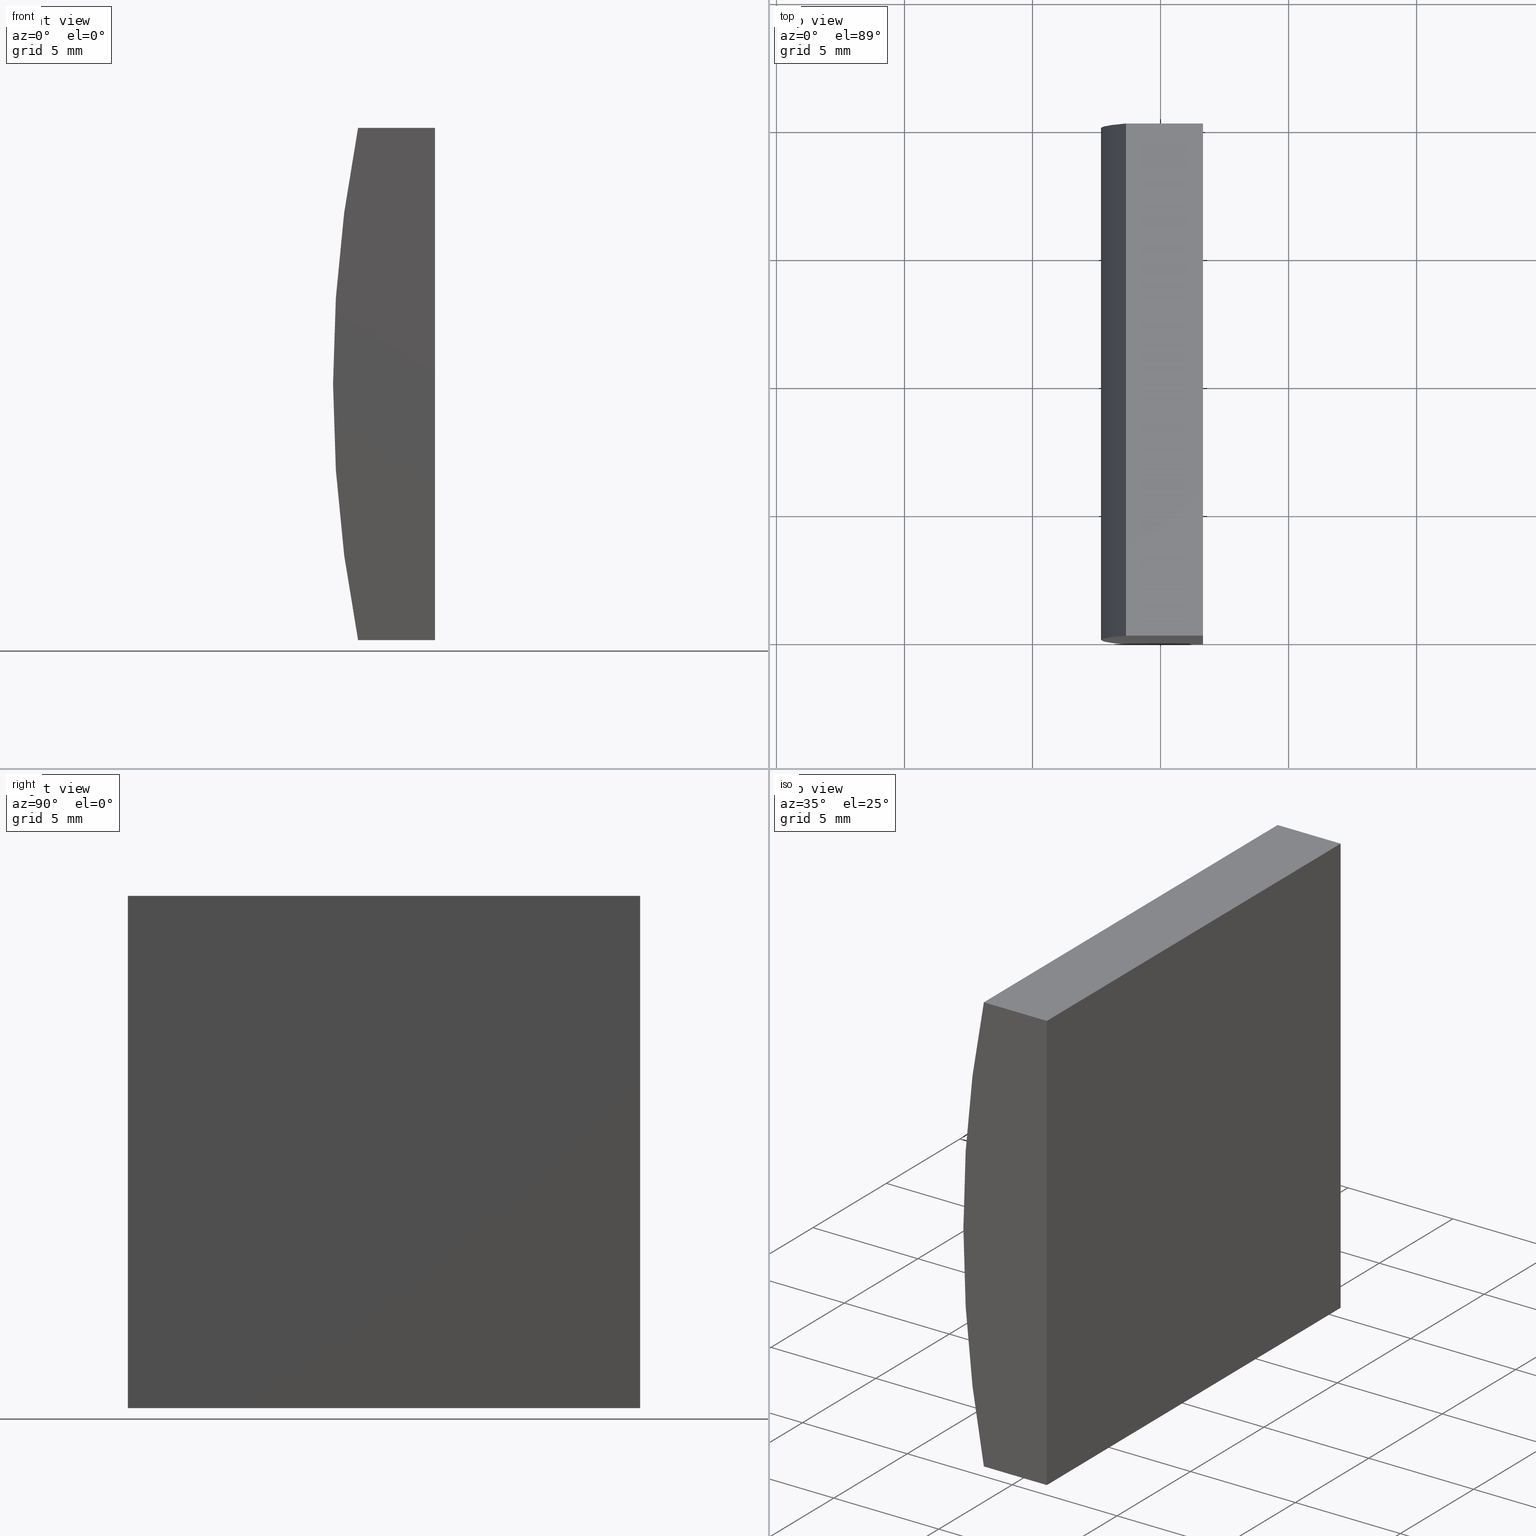
[diagram: canonical four-view strip — front | top / right | iso, engineering-drawing reading convention]
A machine part, canonical four-view strip (front | top / right | iso — engineering-drawing reading convention). The complete STEP part file that produces these views, byte-faithful:
ISO-10303-21;
HEADER;
FILE_DESCRIPTION (( 'STEP AP214' ),
    '1' );
FILE_NAME ('155031.STEP',
    '2019-06-17T06:36:16',
    ( 'user' ),
    ( '΢���й�' ),
    'SwSTEP 2.0',
    'SolidWorks 2016',
    '' );
FILE_SCHEMA (( 'AUTOMOTIVE_DESIGN' ));
ENDSEC;

DATA;
#1 = AXIS2_PLACEMENT_3D ( 'NONE', #92, #126, #51 ) ;
#2 = DIRECTION ( 'NONE',  ( 1.000000000000000000, 0.0000000000000000000, 2.310440093344863800E-015 ) ) ;
#3 = SURFACE_STYLE_FILL_AREA ( #137 ) ;
#4 = VECTOR ( 'NONE', #133, 1000.000000000000000 ) ;
#5 = DIRECTION ( 'NONE',  ( -2.310440093344863800E-015, 0.0000000000000000000, 1.000000000000000000 ) ) ;
#6 =( NAMED_UNIT ( * ) SI_UNIT ( $, .STERADIAN. ) SOLID_ANGLE_UNIT ( ) );
#7 = LINE ( 'NONE', #62, #59 ) ;
#8 = EDGE_CURVE ( 'NONE', #66, #141, #55, .T. ) ;
#9 = ORIENTED_EDGE ( 'NONE', *, *, #64, .T. ) ;
#10 = ORIENTED_EDGE ( 'NONE', *, *, #181, .T. ) ;
#11 = EDGE_CURVE ( 'NONE', #41, #36, #93, .T. ) ;
#12 = VECTOR ( 'NONE', #60, 1000.000000000000000 ) ;
#13 =( NAMED_UNIT ( * ) SI_UNIT ( $, .STERADIAN. ) SOLID_ANGLE_UNIT ( ) );
#14 = AXIS2_PLACEMENT_3D ( 'NONE', #119, #81, #87 ) ;
#15 = EDGE_LOOP ( 'NONE', ( #9, #153, #198, #112 ) ) ;
#16 = DIRECTION ( 'NONE',  ( 0.0000000000000000000, 1.000000000000000000, 0.0000000000000000000 ) ) ;
#17 = ADVANCED_FACE ( 'NONE', ( #204 ), #34, .F. ) ;
#18 = PRODUCT_DEFINITION_SHAPE ( 'NONE', 'NONE',  #101 ) ;
#19 = DIRECTION ( 'NONE',  ( -3.469446951953615200E-016, -0.0000000000000000000, -1.000000000000000000 ) ) ;
#20 = EDGE_CURVE ( 'NONE', #47, #66, #99, .T. ) ;
#21 = DIRECTION ( 'NONE',  ( 0.0000000000000000000, 1.000000000000000000, 0.0000000000000000000 ) ) ;
#22 = EDGE_LOOP ( 'NONE', ( #86, #45, #144, #116 ) ) ;
#23 = MANIFOLD_SOLID_BREP ( '͹̨-����1', #157 ) ;
#24 =( LENGTH_UNIT ( ) NAMED_UNIT ( * ) SI_UNIT ( .MILLI., .METRE. ) );
#25 = ADVANCED_FACE ( 'NONE', ( #107 ), #40, .F. ) ;
#26 = ORIENTED_EDGE ( 'NONE', *, *, #43, .F. ) ;
#27 = ORIENTED_EDGE ( 'NONE', *, *, #196, .T. ) ;
#28 = CARTESIAN_POINT ( 'NONE',  ( 4.355204334851265500, 20.00000000000000000, 4.286263797015675000E-017 ) ) ;
#29 = CARTESIAN_POINT ( 'NONE',  ( -46.34807366568830400, 20.00000000000000000, 10.00000000000000000 ) ) ;
#30 = ORIENTED_EDGE ( 'NONE', *, *, #134, .T. ) ;
#31 = CIRCLE ( 'NONE', #199, 51.68000000000000700 ) ;
#32 = CARTESIAN_POINT ( 'NONE',  ( -46.34807366568831100, 20.00000000000000000, -10.00000000000000000 ) ) ;
#33 = ORIENTED_EDGE ( 'NONE', *, *, #38, .F. ) ;
#34 = PLANE ( 'NONE',  #135 ) ;
#35 = LINE ( 'NONE', #167, #168 ) ;
#36 = VERTEX_POINT ( 'NONE', #148 ) ;
#37 = CARTESIAN_POINT ( 'NONE',  ( -46.34807366568831100, 0.0000000000000000000, -10.00000000000000000 ) ) ;
#38 = EDGE_CURVE ( 'NONE', #141, #103, #35, .T. ) ;
#39 = CARTESIAN_POINT ( 'NONE',  ( -43.34479566514873000, 20.00000000000000000, 10.00000000000000000 ) ) ;
#40 = PLANE ( 'NONE',  #1 ) ;
#41 = VERTEX_POINT ( 'NONE', #90 ) ;
#42 = SHAPE_DEFINITION_REPRESENTATION ( #18, #154 ) ;
#43 = EDGE_CURVE ( 'NONE', #47, #152, #31, .T. ) ;
#44 = FILL_AREA_STYLE ('',( #108 ) ) ;
#45 = ORIENTED_EDGE ( 'NONE', *, *, #122, .F. ) ;
#46 = PRESENTATION_LAYER_ASSIGNMENT (  '', '', ( #114 ) ) ;
#47 = VERTEX_POINT ( 'NONE', #186 ) ;
#48 = PRODUCT_DEFINITION_CONTEXT ( 'detailed design', #128, 'design' ) ;
#49 = DIRECTION ( 'NONE',  ( 0.0000000000000000000, 0.0000000000000000000, 1.000000000000000000 ) ) ;
#50 = AXIS2_PLACEMENT_3D ( 'NONE', #70, #5, #2 ) ;
#51 = DIRECTION ( 'NONE',  ( 3.469446951953615200E-016, 0.0000000000000000000, 1.000000000000000000 ) ) ;
#52 = CARTESIAN_POINT ( 'NONE',  ( -46.34807366568830400, 20.00000000000000000, 10.00000000000000000 ) ) ;
#53 = VECTOR ( 'NONE', #173, 1000.000000000000000 ) ;
#54 = PLANE ( 'NONE',  #50 ) ;
#55 = CIRCLE ( 'NONE', #178, 51.68000000000000700 ) ;
#56 = ADVANCED_FACE ( 'NONE', ( #194 ), #151, .T. ) ;
#57 = AXIS2_PLACEMENT_3D ( 'NONE', #125, #118, #65 ) ;
#58 = LINE ( 'NONE', #98, #78 ) ;
#59 = VECTOR ( 'NONE', #155, 1000.000000000000000 ) ;
#60 = DIRECTION ( 'NONE',  ( -0.0000000000000000000, -1.000000000000000000, -0.0000000000000000000 ) ) ;
#61 = PRODUCT_CONTEXT ( 'NONE', #120, 'mechanical' ) ;
#62 = CARTESIAN_POINT ( 'NONE',  ( -43.34479566514873700, 0.0000000000000000000, -9.999999999999992900 ) ) ;
#63 = ORIENTED_EDGE ( 'NONE', *, *, #181, .F. ) ;
#64 = EDGE_CURVE ( 'NONE', #103, #104, #7, .T. ) ;
#65 = DIRECTION ( 'NONE',  ( 0.0000000000000000000, -0.0000000000000000000, 1.000000000000000000 ) ) ;
#66 = VERTEX_POINT ( 'NONE', #37 ) ;
#67 = ORIENTED_EDGE ( 'NONE', *, *, #11, .T. ) ;
#68 = LINE ( 'NONE', #139, #53 ) ;
#69 = DIRECTION ( 'NONE',  ( -0.0000000000000000000, -1.000000000000000000, -0.0000000000000000000 ) ) ;
#70 = CARTESIAN_POINT ( 'NONE',  ( -46.34807366568831100, 20.00000000000000000, -10.00000000000000000 ) ) ;
#71 = ORIENTED_EDGE ( 'NONE', *, *, #159, .T. ) ;
#72 = PRODUCT_RELATED_PRODUCT_CATEGORY ( 'part', '', ( #91 ) ) ;
#73 =( NAMED_UNIT ( * ) PLANE_ANGLE_UNIT ( ) SI_UNIT ( $, .RADIAN. ) );
#74 = FACE_OUTER_BOUND ( 'NONE', #123, .T. ) ;
#75 = CARTESIAN_POINT ( 'NONE',  ( -46.34807366568831100, 20.00000000000000000, -10.00000000000000000 ) ) ;
#76 =( NAMED_UNIT ( * ) PLANE_ANGLE_UNIT ( ) SI_UNIT ( $, .RADIAN. ) );
#77 = FACE_OUTER_BOUND ( 'NONE', #127, .T. ) ;
#78 = VECTOR ( 'NONE', #94, 1000.000000000000000 ) ;
#79 = CARTESIAN_POINT ( 'NONE',  ( -43.34479566514873000, 0.0000000000000000000, 10.00000000000000000 ) ) ;
#80 = EDGE_LOOP ( 'NONE', ( #121, #131, #26, #129 ) ) ;
#81 = DIRECTION ( 'NONE',  ( -0.0000000000000000000, -1.000000000000000000, -0.0000000000000000000 ) ) ;
#82 = MECHANICAL_DESIGN_GEOMETRIC_PRESENTATION_REPRESENTATION (  '', ( #114 ), #149 ) ;
#83 = DIRECTION ( 'NONE',  ( -1.000000000000000000, 0.0000000000000000000, -0.0000000000000000000 ) ) ;
#84 =( NAMED_UNIT ( * ) SI_UNIT ( $, .STERADIAN. ) SOLID_ANGLE_UNIT ( ) );
#85 = CYLINDRICAL_SURFACE ( 'NONE', #14, 51.68000000000000700 ) ;
#86 = ORIENTED_EDGE ( 'NONE', *, *, #38, .T. ) ;
#87 = DIRECTION ( 'NONE',  ( 0.0000000000000000000, 0.0000000000000000000, -1.000000000000000000 ) ) ;
#88 = STYLED_ITEM ( 'NONE', ( #156 ), #23 ) ;
#89 = COLOUR_RGB ( '',1.000000000000000000, 1.000000000000000000, 1.000000000000000000 ) ;
#90 = CARTESIAN_POINT ( 'NONE',  ( -43.34479566514873000, 20.00000000000000000, 10.00000000000000000 ) ) ;
#91 = PRODUCT ( '155031', '155031', '', ( #61 ) ) ;
#92 = CARTESIAN_POINT ( 'NONE',  ( -43.34479566514873700, 20.00000000000000000, -9.999999999999992900 ) ) ;
#93 = LINE ( 'NONE', #195, #109 ) ;
#94 = DIRECTION ( 'NONE',  ( -1.000000000000000000, -0.0000000000000000000, -2.310440093344863800E-015 ) ) ;
#95 = ORIENTED_EDGE ( 'NONE', *, *, #64, .F. ) ;
#96 = DIRECTION ( 'NONE',  ( 0.0000000000000000000, 0.0000000000000000000, -1.000000000000000000 ) ) ;
#97 = FILL_AREA_STYLE_COLOUR ( '', #202 ) ;
#98 = CARTESIAN_POINT ( 'NONE',  ( -46.34807366568831100, 0.0000000000000000000, -10.00000000000000000 ) ) ;
#99 = LINE ( 'NONE', #32, #115 ) ;
#100 = SURFACE_SIDE_STYLE ('',( #3 ) ) ;
#101 = PRODUCT_DEFINITION ( 'δ֪', '', #174, #48 ) ;
#102 = UNCERTAINTY_MEASURE_WITH_UNIT (LENGTH_MEASURE( 1.000000000000000100E-005 ), #201, 'distance_accuracy_value', 'NONE');
#103 = VERTEX_POINT ( 'NONE', #79 ) ;
#104 = VERTEX_POINT ( 'NONE', #165 ) ;
#105 = AXIS2_PLACEMENT_3D ( 'NONE', #175, #169, #166 ) ;
#106 = DIRECTION ( 'NONE',  ( 0.0000000000000000000, 1.000000000000000000, 0.0000000000000000000 ) ) ;
#107 = FACE_OUTER_BOUND ( 'NONE', #15, .T. ) ;
#108 = FILL_AREA_STYLE_COLOUR ( '', #89 ) ;
#109 = VECTOR ( 'NONE', #19, 1000.000000000000000 ) ;
#110 = AXIS2_PLACEMENT_3D ( 'NONE', #197, #16, #163 ) ;
#111 = DIRECTION ( 'NONE',  ( -0.0000000000000000000, -1.000000000000000000, -0.0000000000000000000 ) ) ;
#112 = ORIENTED_EDGE ( 'NONE', *, *, #122, .T. ) ;
#113 =( NAMED_UNIT ( * ) PLANE_ANGLE_UNIT ( ) SI_UNIT ( $, .RADIAN. ) );
#114 = STYLED_ITEM ( 'NONE', ( #117 ), #154 ) ;
#115 = VECTOR ( 'NONE', #69, 1000.000000000000000 ) ;
#116 = ORIENTED_EDGE ( 'NONE', *, *, #184, .T. ) ;
#117 = PRESENTATION_STYLE_ASSIGNMENT (( #177 ) ) ;
#118 = DIRECTION ( 'NONE',  ( 0.0000000000000000000, 1.000000000000000000, 0.0000000000000000000 ) ) ;
#119 = CARTESIAN_POINT ( 'NONE',  ( 4.355204334851265500, 20.00000000000000000, 4.286263797015675000E-017 ) ) ;
#120 = APPLICATION_CONTEXT ( 'automotive_design' ) ;
#121 = ORIENTED_EDGE ( 'NONE', *, *, #8, .T. ) ;
#122 = EDGE_CURVE ( 'NONE', #41, #103, #183, .T. ) ;
#123 = EDGE_LOOP ( 'NONE', ( #160, #180, #95, #33 ) ) ;
#124 = DIRECTION ( 'NONE',  ( -0.0000000000000000000, -1.000000000000000000, -0.0000000000000000000 ) ) ;
#125 = CARTESIAN_POINT ( 'NONE',  ( 4.355204334851265500, 20.00000000000000000, 4.286263797015675000E-017 ) ) ;
#126 = DIRECTION ( 'NONE',  ( -1.000000000000000000, 0.0000000000000000000, 3.469446951953615200E-016 ) ) ;
#127 = EDGE_LOOP ( 'NONE', ( #71, #143, #63, #27 ) ) ;
#128 = APPLICATION_CONTEXT ( 'automotive_design' ) ;
#129 = ORIENTED_EDGE ( 'NONE', *, *, #20, .T. ) ;
#130 = CARTESIAN_POINT ( 'NONE',  ( 4.355204334851265500, 0.0000000000000000000, 4.286263797015675000E-017 ) ) ;
#131 = ORIENTED_EDGE ( 'NONE', *, *, #184, .F. ) ;
#132 = LINE ( 'NONE', #75, #4 ) ;
#133 = DIRECTION ( 'NONE',  ( -1.000000000000000000, -0.0000000000000000000, -2.310440093344863800E-015 ) ) ;
#134 = EDGE_CURVE ( 'NONE', #152, #41, #68, .T. ) ;
#135 = AXIS2_PLACEMENT_3D ( 'NONE', #29, #96, #83 ) ;
#136 = SURFACE_STYLE_FILL_AREA ( #44 ) ;
#137 = FILL_AREA_STYLE ('',( #97 ) ) ;
#138 = UNCERTAINTY_MEASURE_WITH_UNIT (LENGTH_MEASURE( 1.000000000000000100E-005 ), #161, 'distance_accuracy_value', 'NONE');
#139 = CARTESIAN_POINT ( 'NONE',  ( -46.34807366568830400, 20.00000000000000000, 10.00000000000000000 ) ) ;
#140 = APPLICATION_PROTOCOL_DEFINITION ( 'draft international standard', 'automotive_design', 1998, #120 ) ;
#141 = VERTEX_POINT ( 'NONE', #187 ) ;
#142 =( GEOMETRIC_REPRESENTATION_CONTEXT ( 3 ) GLOBAL_UNCERTAINTY_ASSIGNED_CONTEXT ( ( #138 ) ) GLOBAL_UNIT_ASSIGNED_CONTEXT ( ( #161, #113, #84 ) ) REPRESENTATION_CONTEXT ( 'NONE', 'WORKASPACE' ) );
#143 = ORIENTED_EDGE ( 'NONE', *, *, #20, .F. ) ;
#144 = ORIENTED_EDGE ( 'NONE', *, *, #134, .F. ) ;
#145 = ADVANCED_FACE ( 'NONE', ( #74 ), #176, .F. ) ;
#146 = ADVANCED_FACE ( 'NONE', ( #200 ), #85, .T. ) ;
#147 = DIRECTION ( 'NONE',  ( 1.000000000000000000, 0.0000000000000000000, 0.0000000000000000000 ) ) ;
#148 = CARTESIAN_POINT ( 'NONE',  ( -43.34479566514873700, 20.00000000000000000, -9.999999999999992900 ) ) ;
#149 =( GEOMETRIC_REPRESENTATION_CONTEXT ( 3 ) GLOBAL_UNCERTAINTY_ASSIGNED_CONTEXT ( ( #102 ) ) GLOBAL_UNIT_ASSIGNED_CONTEXT ( ( #201, #76, #6 ) ) REPRESENTATION_CONTEXT ( 'NONE', 'WORKASPACE' ) );
#150 = ORIENTED_EDGE ( 'NONE', *, *, #43, .T. ) ;
#151 = PLANE ( 'NONE',  #57 ) ;
#152 = VERTEX_POINT ( 'NONE', #52 ) ;
#153 = ORIENTED_EDGE ( 'NONE', *, *, #196, .F. ) ;
#154 = ADVANCED_BREP_SHAPE_REPRESENTATION ( '155031', ( #23, #105 ), #142 ) ;
#155 = DIRECTION ( 'NONE',  ( -3.469446951953615200E-016, -0.0000000000000000000, -1.000000000000000000 ) ) ;
#156 = PRESENTATION_STYLE_ASSIGNMENT (( #158 ) ) ;
#157 = CLOSED_SHELL ( 'NONE', ( #146, #17, #25, #170, #56, #145 ) ) ;
#158 = SURFACE_STYLE_USAGE ( .BOTH. , #190 ) ;
#159 = EDGE_CURVE ( 'NONE', #104, #66, #58, .T. ) ;
#160 = ORIENTED_EDGE ( 'NONE', *, *, #8, .F. ) ;
#161 =( LENGTH_UNIT ( ) NAMED_UNIT ( * ) SI_UNIT ( .MILLI., .METRE. ) );
#162 = APPLICATION_PROTOCOL_DEFINITION ( 'draft international standard', 'automotive_design', 1998, #128 ) ;
#163 = DIRECTION ( 'NONE',  ( 0.0000000000000000000, -0.0000000000000000000, 1.000000000000000000 ) ) ;
#164 = LINE ( 'NONE', #189, #182 ) ;
#165 = CARTESIAN_POINT ( 'NONE',  ( -43.34479566514873700, 0.0000000000000000000, -9.999999999999992900 ) ) ;
#166 = DIRECTION ( 'NONE',  ( 1.000000000000000000, 0.0000000000000000000, 0.0000000000000000000 ) ) ;
#167 = CARTESIAN_POINT ( 'NONE',  ( -46.34807366568830400, 0.0000000000000000000, 10.00000000000000000 ) ) ;
#168 = VECTOR ( 'NONE', #147, 1000.000000000000000 ) ;
#169 = DIRECTION ( 'NONE',  ( 0.0000000000000000000, 0.0000000000000000000, 1.000000000000000000 ) ) ;
#170 = ADVANCED_FACE ( 'NONE', ( #77 ), #54, .F. ) ;
#171 = EDGE_LOOP ( 'NONE', ( #150, #30, #67, #10 ) ) ;
#172 = UNCERTAINTY_MEASURE_WITH_UNIT (LENGTH_MEASURE( 1.000000000000000100E-005 ), #24, 'distance_accuracy_value', 'NONE');
#173 = DIRECTION ( 'NONE',  ( 1.000000000000000000, 0.0000000000000000000, 0.0000000000000000000 ) ) ;
#174 = PRODUCT_DEFINITION_FORMATION_WITH_SPECIFIED_SOURCE ( '�κ�', '', #91, .NOT_KNOWN. ) ;
#175 = CARTESIAN_POINT ( 'NONE',  ( 0.0000000000000000000, 0.0000000000000000000, 0.0000000000000000000 ) ) ;
#176 = PLANE ( 'NONE',  #110 ) ;
#177 = SURFACE_STYLE_USAGE ( .BOTH. , #100 ) ;
#178 = AXIS2_PLACEMENT_3D ( 'NONE', #130, #21, #49 ) ;
#179 = DIRECTION ( 'NONE',  ( 0.0000000000000000000, 0.0000000000000000000, 1.000000000000000000 ) ) ;
#180 = ORIENTED_EDGE ( 'NONE', *, *, #159, .F. ) ;
#181 = EDGE_CURVE ( 'NONE', #36, #47, #132, .T. ) ;
#182 = VECTOR ( 'NONE', #111, 1000.000000000000000 ) ;
#183 = LINE ( 'NONE', #39, #12 ) ;
#184 = EDGE_CURVE ( 'NONE', #152, #141, #191, .T. ) ;
#185 =( GEOMETRIC_REPRESENTATION_CONTEXT ( 3 ) GLOBAL_UNCERTAINTY_ASSIGNED_CONTEXT ( ( #172 ) ) GLOBAL_UNIT_ASSIGNED_CONTEXT ( ( #24, #73, #13 ) ) REPRESENTATION_CONTEXT ( 'NONE', 'WORKASPACE' ) );
#186 = CARTESIAN_POINT ( 'NONE',  ( -46.34807366568831100, 20.00000000000000000, -10.00000000000000000 ) ) ;
#187 = CARTESIAN_POINT ( 'NONE',  ( -46.34807366568830400, 0.0000000000000000000, 10.00000000000000000 ) ) ;
#188 = CARTESIAN_POINT ( 'NONE',  ( -46.34807366568830400, 20.00000000000000000, 10.00000000000000000 ) ) ;
#189 = CARTESIAN_POINT ( 'NONE',  ( -43.34479566514873700, 20.00000000000000000, -9.999999999999992900 ) ) ;
#190 = SURFACE_SIDE_STYLE ('',( #136 ) ) ;
#191 = LINE ( 'NONE', #188, #192 ) ;
#192 = VECTOR ( 'NONE', #124, 1000.000000000000000 ) ;
#193 = MECHANICAL_DESIGN_GEOMETRIC_PRESENTATION_REPRESENTATION (  '', ( #88 ), #185 ) ;
#194 = FACE_OUTER_BOUND ( 'NONE', #171, .T. ) ;
#195 = CARTESIAN_POINT ( 'NONE',  ( -43.34479566514873700, 20.00000000000000000, -9.999999999999992900 ) ) ;
#196 = EDGE_CURVE ( 'NONE', #36, #104, #164, .T. ) ;
#197 = CARTESIAN_POINT ( 'NONE',  ( 4.355204334851265500, 0.0000000000000000000, 4.286263797015675000E-017 ) ) ;
#198 = ORIENTED_EDGE ( 'NONE', *, *, #11, .F. ) ;
#199 = AXIS2_PLACEMENT_3D ( 'NONE', #28, #106, #179 ) ;
#200 = FACE_OUTER_BOUND ( 'NONE', #80, .T. ) ;
#201 =( LENGTH_UNIT ( ) NAMED_UNIT ( * ) SI_UNIT ( .MILLI., .METRE. ) );
#202 = COLOUR_RGB ( '',1.000000000000000000, 1.000000000000000000, 1.000000000000000000 ) ;
#203 = PRESENTATION_LAYER_ASSIGNMENT (  '', '', ( #88 ) ) ;
#204 = FACE_OUTER_BOUND ( 'NONE', #22, .T. ) ;
ENDSEC;
END-ISO-10303-21;
